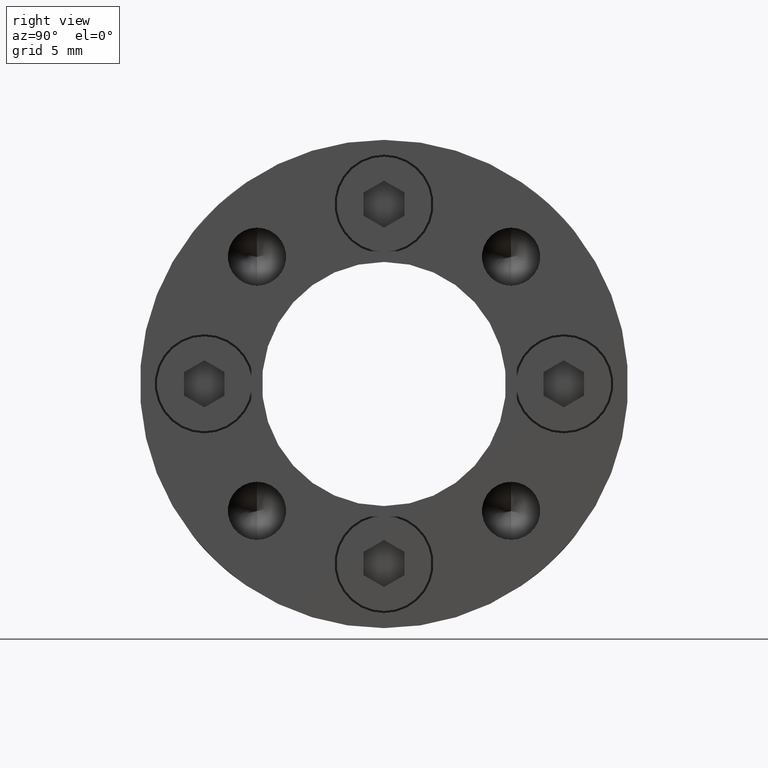
[diagram: clean part render]
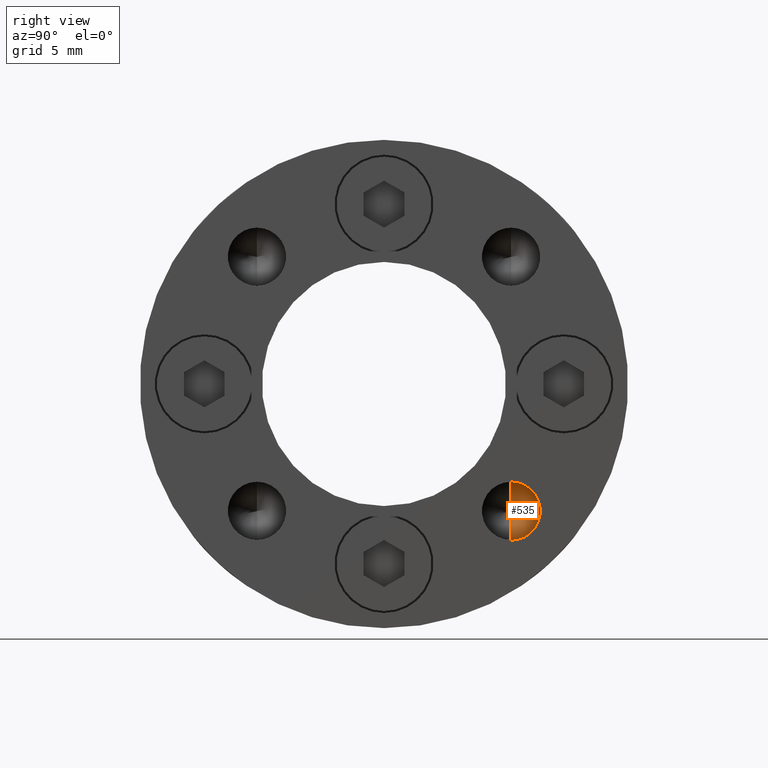
[diagram: same view with one face highlighted and labeled with its STEP entity id]
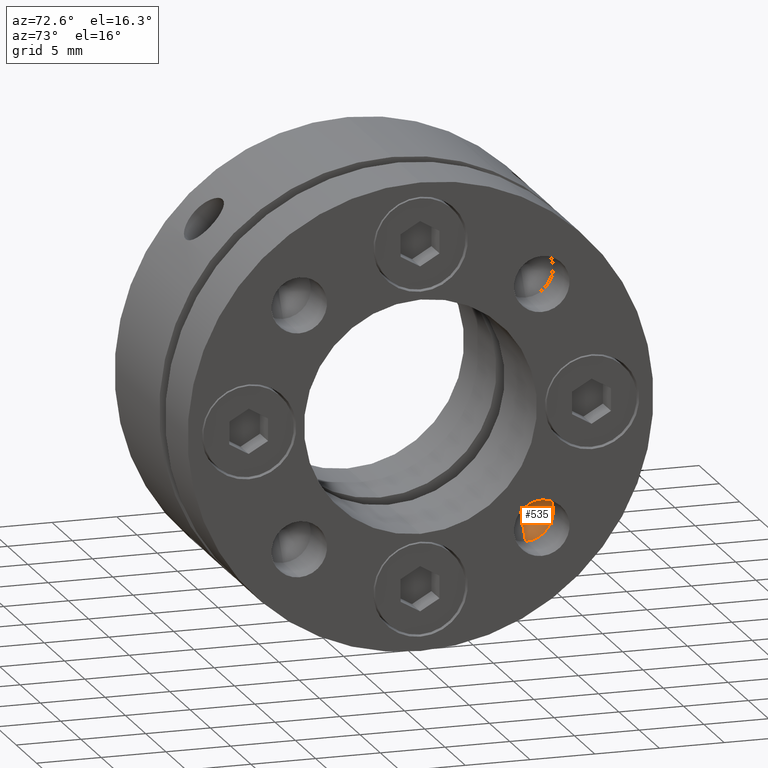
[diagram: same view with one face highlighted and labeled with its STEP entity id]
A machine part, right view. The second image highlights one B-rep face of the part: STEP entity #535.
A second angle (auxiliary view) of the same face is appended — the face is thin or edge-on in the first view.
In plain terms, the highlighted conical surface has half-angle 59 deg.
Its self-contained STEP definition (entity closure, byte-faithful):
#279 = DIRECTION ( 'NONE',  ( 0.0000000000000000000, 0.0000000000000000000, -1.000000000000000000 ) ) ;
#281 = DIRECTION ( 'NONE',  ( 1.000000000000000000, 0.0000000000000000000, 0.0000000000000000000 ) ) ;
#283 = CARTESIAN_POINT ( 'NONE',  ( 14.00000000120371600, 9.369164850721754000, -9.369164850721759300 ) ) ;
#535 = ADVANCED_FACE ( 'NONE', ( #1456 ), #1467, .F. ) ;
#659 = EDGE_CURVE ( 'NONE', #1237, #1226, #2436, .T. ) ;
#660 = EDGE_CURVE ( 'NONE', #1237, #1229, #2434, .T. ) ;
#664 = EDGE_CURVE ( 'NONE', #1226, #1229, #2446, .T. ) ;
#681 = EDGE_LOOP ( 'NONE', ( #837, #838, #839 ) ) ;
#837 = ORIENTED_EDGE ( 'NONE', *, *, #660, .F. ) ;
#838 = ORIENTED_EDGE ( 'NONE', *, *, #659, .T. ) ;
#839 = ORIENTED_EDGE ( 'NONE', *, *, #664, .T. ) ;
#1226 = VERTEX_POINT ( 'NONE', #3102 ) ;
#1229 = VERTEX_POINT ( 'NONE', #3105 ) ;
#1237 = VERTEX_POINT ( 'NONE', #3113 ) ;
#1456 = FACE_OUTER_BOUND ( 'NONE', #681, .T. ) ;
#1467 = CONICAL_SURFACE ( 'NONE', #1739, 2.149999999159050400, 1.029744257476657800 ) ;
#1739 = AXIS2_PLACEMENT_3D ( 'NONE', #283, #281, #279 ) ;
#1838 = AXIS2_PLACEMENT_3D ( 'NONE', #2228, #2229, #2230 ) ;
#2213 = CARTESIAN_POINT ( 'NONE',  ( 14.00000000120371600, 9.369164850721754000, -7.219164851562709400 ) ) ;
#2219 = CARTESIAN_POINT ( 'NONE',  ( 14.00000000120371600, 9.369164850721754000, -11.51916484988080900 ) ) ;
#2220 = DIRECTION ( 'NONE',  ( 0.5150380759386521400, 0.0000000000000000000, -0.8571673000840682700 ) ) ;
#2221 = DIRECTION ( 'NONE',  ( 0.5150380759386521400, 1.049727190381732900E-016, 0.8571673000840682700 ) ) ;
#2228 = CARTESIAN_POINT ( 'NONE',  ( 13.99999999999999500, 9.369164850721754000, -9.369164850721759300 ) ) ;
#2229 = DIRECTION ( 'NONE',  ( 1.000000000000000000, 0.0000000000000000000, 0.0000000000000000000 ) ) ;
#2230 = DIRECTION ( 'NONE',  ( 0.0000000000000000000, 0.0000000000000000000, -1.000000000000000000 ) ) ;
#2434 = LINE ( 'NONE', #2213, #2441 ) ;
#2436 = LINE ( 'NONE', #2219, #2439 ) ;
#2439 = VECTOR ( 'NONE', #2220, 1000.000000000000000 ) ;
#2441 = VECTOR ( 'NONE', #2221, 1000.000000000000000 ) ;
#2446 = CIRCLE ( 'NONE', #1838, 2.149999999999999000 ) ;
#3102 = CARTESIAN_POINT ( 'NONE',  ( 13.99999999999999500, 9.369164850721754000, -11.51916484787748200 ) ) ;
#3105 = CARTESIAN_POINT ( 'NONE',  ( 13.99999999999999500, 9.369164850721754000, -7.219164853566037500 ) ) ;
#3113 = CARTESIAN_POINT ( 'NONE',  ( 12.70814966733269100, 9.369164850721754000, -9.369164850795641500 ) ) ;